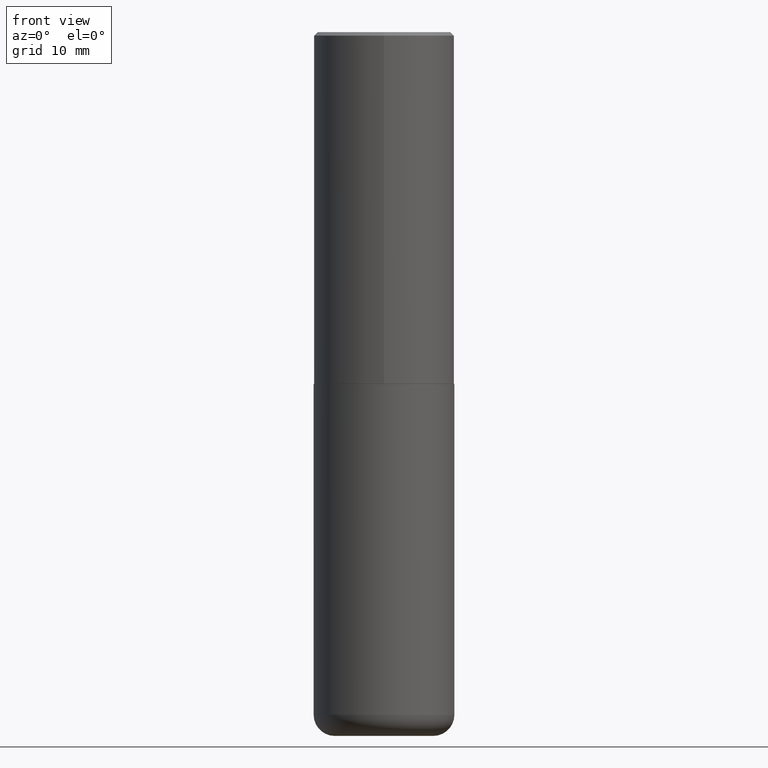
[diagram: clean part render]
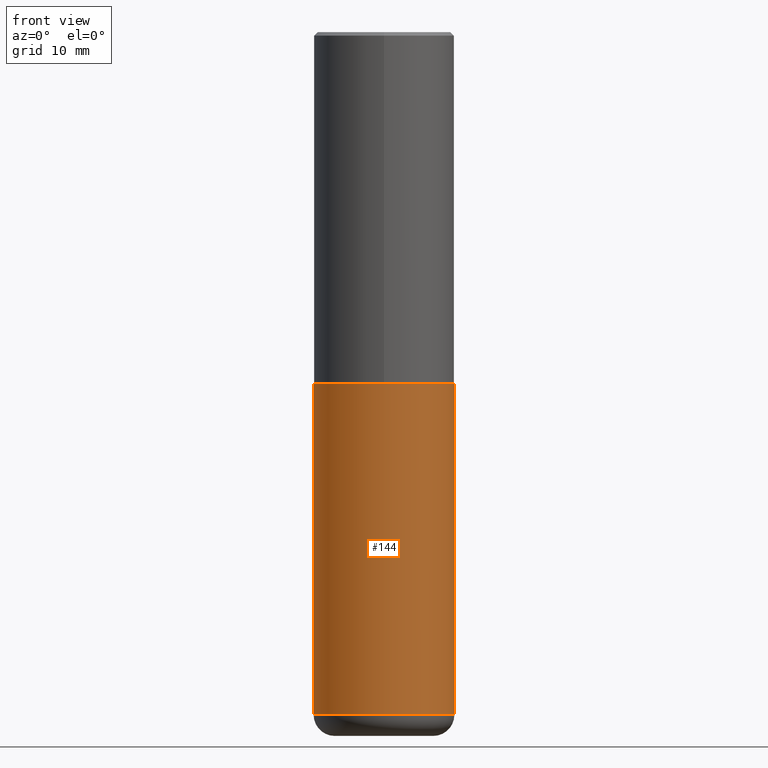
[diagram: same view with one face highlighted and labeled with its STEP entity id]
A machine part, front view. The second image highlights one B-rep face of the part: STEP entity #144.
In plain terms, the highlighted cylindrical surface (partial cylindrical patch) has radius 10 mm, axis along (-0, 0, 1).
Its self-contained STEP definition (entity closure, byte-faithful):
#22 = EDGE_CURVE ( 'NONE', #268, #73, #163, .T. ) ;
#41 = ORIENTED_EDGE ( 'NONE', *, *, #92, .F. ) ;
#44 = CARTESIAN_POINT ( 'NONE',  ( 0.3937000000000001054, -1.608281049111317408E-14, -3.818900000000000183 ) ) ;
#52 = CARTESIAN_POINT ( 'NONE',  ( 9.339000823940418668E-29, -1.333361808490808928E-14, -3.818900000000000183 ) ) ;
#71 = DIRECTION ( 'NONE',  ( 1.000000000000000000, -6.982962677686266711E-15, 0.000000000000000000 ) ) ;
#73 = VERTEX_POINT ( 'NONE', #290 ) ;
#92 = EDGE_CURVE ( 'NONE', #73, #134, #391, .T. ) ;
#100 = DIRECTION ( 'NONE',  ( -2.445468806185136877E-29, 3.491481338843145188E-15, 1.000000000000000000 ) ) ;
#134 = VERTEX_POINT ( 'NONE', #191 ) ;
#137 = CARTESIAN_POINT ( 'NONE',  ( 0.3937000000000001054, -2.749192406205084005E-15, 1.919750796630860452E-29 ) ) ;
#144 = ADVANCED_FACE ( 'NONE', ( #376 ), #284, .T. ) ;
#147 = AXIS2_PLACEMENT_3D ( 'NONE', #52, #261, #71 ) ;
#163 = LINE ( 'NONE', #220, #203 ) ;
#170 = AXIS2_PLACEMENT_3D ( 'NONE', #230, #320, #358 ) ;
#185 = DIRECTION ( 'NONE',  ( -2.445468806185136877E-29, 3.491481338843145188E-15, 1.000000000000000000 ) ) ;
#190 = CIRCLE ( 'NONE', #147, 0.3937000000000001054 ) ;
#191 = CARTESIAN_POINT ( 'NONE',  ( 0.3937000000000000499, -9.622173421717814924E-15, -1.968500000000000139 ) ) ;
#203 = VECTOR ( 'NONE', #185, 39.37007874015748143 ) ;
#220 = CARTESIAN_POINT ( 'NONE',  ( -0.3937000000000001054, 2.797406750687515181E-15, -1.936584745033357016E-29 ) ) ;
#222 = CARTESIAN_POINT ( 'NONE',  ( 0.000000000000000000, 0.000000000000000000, 0.000000000000000000 ) ) ;
#230 = CARTESIAN_POINT ( 'NONE',  ( 4.813905344975441835E-29, -6.872981015512731707E-15, -1.968500000000000139 ) ) ;
#261 = DIRECTION ( 'NONE',  ( -2.445468806185136597E-29, 3.491481338843145583E-15, 1.000000000000000000 ) ) ;
#262 = LINE ( 'NONE', #137, #395 ) ;
#264 = AXIS2_PLACEMENT_3D ( 'NONE', #222, #286, #281 ) ;
#268 = VERTEX_POINT ( 'NONE', #411 ) ;
#281 = DIRECTION ( 'NONE',  ( 1.000000000000000000, -6.982962677686266711E-15, 4.876176775795935793E-29 ) ) ;
#284 = CYLINDRICAL_SURFACE ( 'NONE', #264, 0.3937000000000001054 ) ;
#285 = EDGE_LOOP ( 'NONE', ( #329, #367, #312, #41 ) ) ;
#286 = DIRECTION ( 'NONE',  ( -2.445468806185136597E-29, 3.491481338843145583E-15, 1.000000000000000000 ) ) ;
#290 = CARTESIAN_POINT ( 'NONE',  ( -0.3937000000000000499, -7.305892799522895709E-15, -1.968500000000000139 ) ) ;
#296 = EDGE_CURVE ( 'NONE', #268, #325, #190, .T. ) ;
#312 = ORIENTED_EDGE ( 'NONE', *, *, #357, .T. ) ;
#320 = DIRECTION ( 'NONE',  ( -2.445468806185136597E-29, 3.491481338843145583E-15, 1.000000000000000000 ) ) ;
#325 = VERTEX_POINT ( 'NONE', #44 ) ;
#329 = ORIENTED_EDGE ( 'NONE', *, *, #22, .F. ) ;
#357 = EDGE_CURVE ( 'NONE', #325, #134, #262, .T. ) ;
#358 = DIRECTION ( 'NONE',  ( 1.000000000000000000, -6.982962677686265133E-15, 0.000000000000000000 ) ) ;
#367 = ORIENTED_EDGE ( 'NONE', *, *, #296, .T. ) ;
#376 = FACE_OUTER_BOUND ( 'NONE', #285, .T. ) ;
#391 = CIRCLE ( 'NONE', #170, 0.3937000000000000499 ) ;
#395 = VECTOR ( 'NONE', #100, 39.37007874015748143 ) ;
#411 = CARTESIAN_POINT ( 'NONE',  ( -0.3937000000000001054, -1.053621133422057529E-14, -3.818900000000000183 ) ) ;